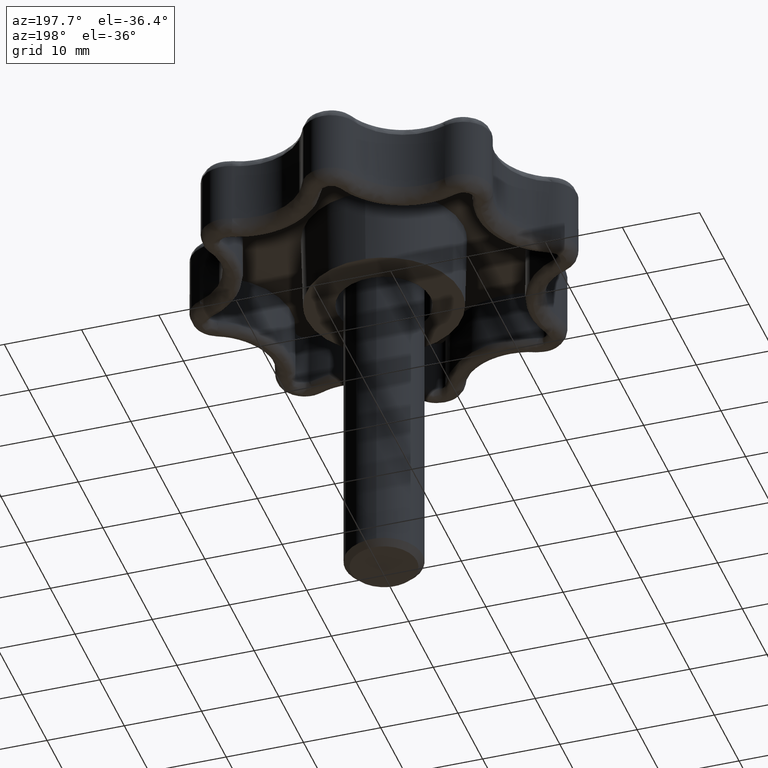
[diagram: clean part render]
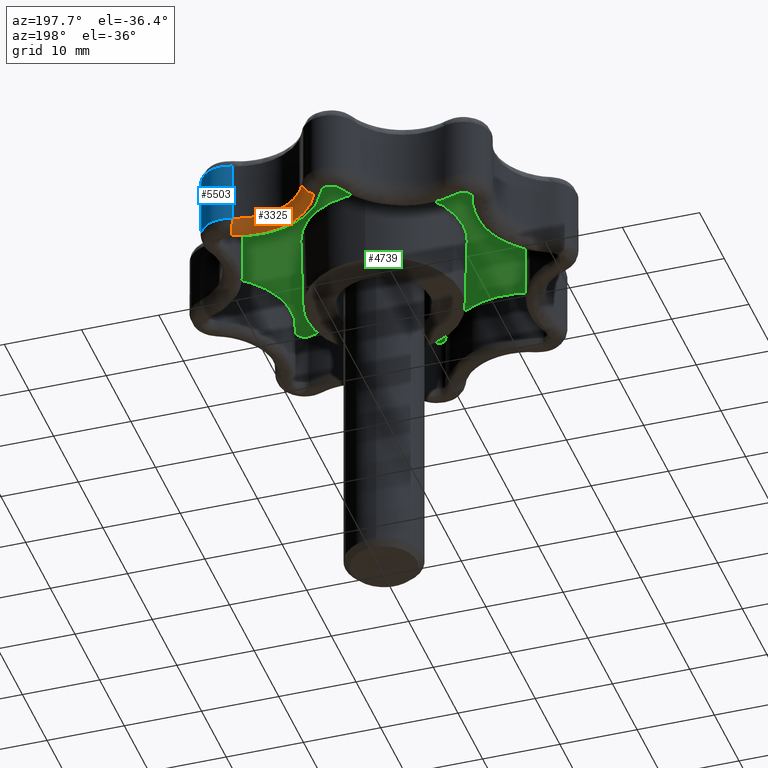
[diagram: same view with three faces highlighted in distinct colors, each labeled with its STEP entity id]
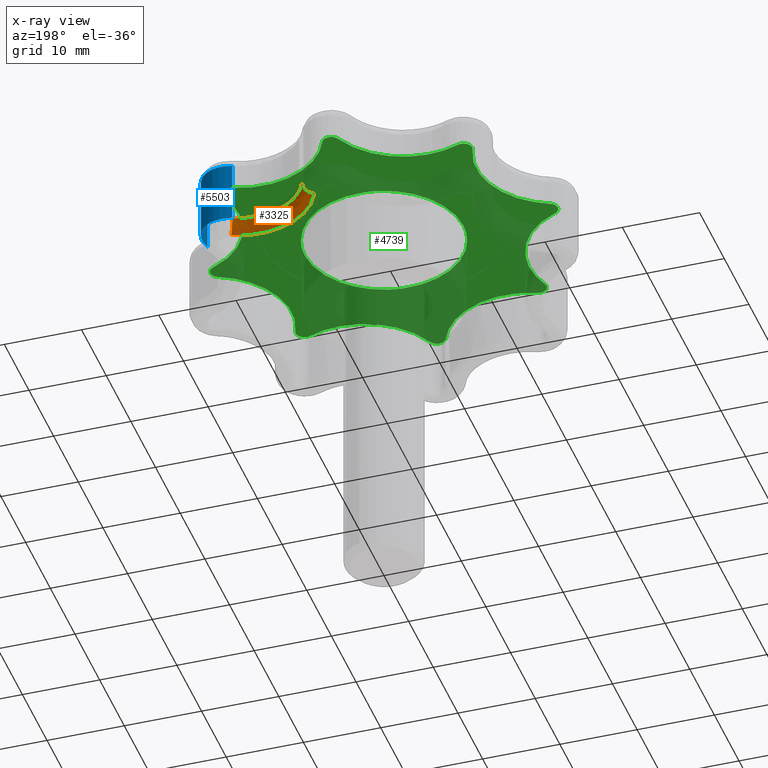
[diagram: x-ray of the same camera — body ghosted, the three highlighted faces saturated]
A machine part, auxiliary view with three faces highlighted in distinct colors.
The next image is the same camera in x-ray (body ghosted, the three faces saturated) — at least one of them is partly hidden behind the body in this view.
Their STEP definitions:

[orange] entity #3325 — the highlighted face is a freeform B-spline surface patch.
#1861=CARTESIAN_POINT('',(1.951608922942295,22.201121308526151,2.000000000000085));
#1862=VERTEX_POINT('',#1861);
#2005=CARTESIAN_POINT('',(14.318568614057961,17.078558844237900,2.000000000000085));
#2006=VERTEX_POINT('',#2005);
#2036=CARTESIAN_POINT('',(1.951608922942295,22.201121308526151,2.000000000000085));
#2037=CARTESIAN_POINT('',(5.592437728865609,13.501337493943963,2.000000000000086));
#2038=CARTESIAN_POINT('',(14.318568614057961,17.078558844237900,2.000000000000085));
#2046=(BOUNDED_CURVE()B_SPLINE_CURVE(2,(#2036,#2037,#2038),.UNSPECIFIED.,.F.,.U.)CURVE()GEOMETRIC_REPRESENTATION_ITEM()QUASI_UNIFORM_CURVE()RATIONAL_B_SPLINE_CURVE((1.0,0.709683079960347,1.0))REPRESENTATION_ITEM(''));
#2047=EDGE_CURVE('',#1862,#2006,#2046,.T.);
#3195=CARTESIAN_POINT('',(13.749606274232301,18.466464408698450,3.500000000000060));
#3196=VERTEX_POINT('',#3195);
#3197=CARTESIAN_POINT('',(14.318568614057961,17.078558844237900,2.000000000000085));
#3198=CARTESIAN_POINT('',(13.749606274232695,18.466464408698457,2.000000000000086));
#3199=CARTESIAN_POINT('',(13.749606274232301,18.466464408698450,3.500000000000060));
#3207=(BOUNDED_CURVE()B_SPLINE_CURVE(2,(#3197,#3198,#3199),.UNSPECIFIED.,.F.,.U.)CURVE()GEOMETRIC_REPRESENTATION_ITEM()QUASI_UNIFORM_CURVE()RATIONAL_B_SPLINE_CURVE((1.0,0.707106781186548,1.0))REPRESENTATION_ITEM(''));
#3208=EDGE_CURVE('',#2006,#3196,#3207,.T.);
#3253=CARTESIAN_POINT('',(3.335323767339140,22.780200948468551,3.500000000000060));
#3254=VERTEX_POINT('',#3253);
#3255=CARTESIAN_POINT('',(3.335323767339140,22.780200948468551,3.500000000000060));
#3256=CARTESIAN_POINT('',(3.335324496550105,22.780201253640673,2.878679424910463));
#3257=CARTESIAN_POINT('',(2.930043544039714,22.610592646053959,2.439339548738913));
#3258=CARTESIAN_POINT('',(2.524762591529322,22.440984038467239,1.999999672567362));
#3259=CARTESIAN_POINT('',(1.951608922942295,22.201121308526151,2.000000000000085));
#3267=(BOUNDED_CURVE()B_SPLINE_CURVE(2,(#3255,#3256,#3257,#3258,#3259),.UNSPECIFIED.,.F.,.U.)B_SPLINE_CURVE_WITH_KNOTS((3,2,3),(0.0,0.500000000000000,1.0),.UNSPECIFIED.)CURVE()GEOMETRIC_REPRESENTATION_ITEM()RATIONAL_B_SPLINE_CURVE((1.0,0.923879482093204,1.0,0.923879482093204,1.0))REPRESENTATION_ITEM(''));
#3268=EDGE_CURVE('',#3254,#1862,#3267,.T.);
#3290=CARTESIAN_POINT('',(3.135381404178026,23.298526054866997,3.604305850417957));
#3291=CARTESIAN_POINT('',(6.067484998010515,14.651146926686275,3.604305850417956));
#3292=CARTESIAN_POINT('',(14.256165925985032,18.690936764201030,3.604305850417957));
#3293=CARTESIAN_POINT('',(3.248966490634403,23.337039832887815,1.883692807323330));
#3294=CARTESIAN_POINT('',(6.137131564814874,14.819244474721629,1.883692807323330));
#3295=CARTESIAN_POINT('',(14.203102463500272,18.798496756353618,1.883692807323331));
#3296=CARTESIAN_POINT('',(1.619477856580882,22.784522196133896,2.003631039744648));
#3297=CARTESIAN_POINT('',(5.137983766902704,12.407721514433389,2.003631039744648));
#3298=CARTESIAN_POINT('',(14.964349487207453,17.255443965185840,2.003631039744648));
#3306=(BOUNDED_SURFACE()B_SPLINE_SURFACE(2,2,((#3290,#3293,#3296),(#3291,#3294,#3297),(#3292,#3295,#3298)),.UNSPECIFIED.,.F.,.F.,.U.)B_SPLINE_SURFACE_WITH_KNOTS((3,3),(3,3),(0.0,17.412350352354871),(0.0,2.733562621366230),.UNSPECIFIED.)GEOMETRIC_REPRESENTATION_ITEM()RATIONAL_B_SPLINE_SURFACE(((0.842594596161787,0.552931398578412,0.842594872059611),(0.556172132212819,0.364973898854347,0.556172314324930),(0.844926467047328,0.554461629885283,0.844926743708696)))REPRESENTATION_ITEM('')SURFACE());
#3307=ORIENTED_EDGE('',*,*,#3208,.F.);
#3308=ORIENTED_EDGE('',*,*,#2047,.F.);
#3309=ORIENTED_EDGE('',*,*,#3268,.F.);
#3310=CARTESIAN_POINT('',(13.749606274232310,18.466464408698439,3.500000000000060));
#3311=CARTESIAN_POINT('',(6.401285208611145,15.454066717053262,3.500000000000060));
#3312=CARTESIAN_POINT('',(3.335323767339140,22.780200948468551,3.500000000000060));
#3320=(BOUNDED_CURVE()B_SPLINE_CURVE(2,(#3310,#3311,#3312),.UNSPECIFIED.,.F.,.U.)CURVE()GEOMETRIC_REPRESENTATION_ITEM()QUASI_UNIFORM_CURVE()RATIONAL_B_SPLINE_CURVE((1.0,0.709683053948050,1.0))REPRESENTATION_ITEM(''));
#3321=EDGE_CURVE('',#3196,#3254,#3320,.T.);
#3322=ORIENTED_EDGE('',*,*,#3321,.F.);
#3323=EDGE_LOOP('',(#3307,#3308,#3309,#3322));
#3324=FACE_OUTER_BOUND('',#3323,.T.);
#3325=ADVANCED_FACE('',(#3324),#3306,.T.);

[blue] entity #5503 — the highlighted face is a freeform B-spline surface patch.
#3089=CARTESIAN_POINT('',(18.466464535258599,13.749604463034840,3.500000000000060));
#3090=VERTEX_POINT('',#3089);
#3195=CARTESIAN_POINT('',(13.749606274232301,18.466464408698450,3.500000000000060));
#3196=VERTEX_POINT('',#3195);
#3210=CARTESIAN_POINT('',(18.466464535258581,13.749604463034849,3.500000000000060));
#3211=CARTESIAN_POINT('',(19.379212245710033,15.976124414386348,3.500000000000060));
#3212=CARTESIAN_POINT('',(17.677669288615942,17.677668137557781,3.500000000000060));
#3213=CARTESIAN_POINT('',(15.976126331521849,19.379211860729228,3.500000000000060));
#3214=CARTESIAN_POINT('',(13.749606274232301,18.466464408698450,3.500000000000060));
#3222=(BOUNDED_CURVE()B_SPLINE_CURVE(2,(#3210,#3211,#3212,#3213,#3214),.UNSPECIFIED.,.F.,.U.)B_SPLINE_CURVE_WITH_KNOTS((3,2,3),(0.0,0.500000000000000,1.0),.UNSPECIFIED.)CURVE()GEOMETRIC_REPRESENTATION_ITEM()RATIONAL_B_SPLINE_CURVE((1.0,0.832482231252791,1.0,0.832482231252791,1.0))REPRESENTATION_ITEM(''));
#3223=EDGE_CURVE('',#3090,#3196,#3222,.T.);
#3885=CARTESIAN_POINT('',(18.466464535258599,13.749604463034840,11.500000000000000));
#3886=VERTEX_POINT('',#3885);
#4019=CARTESIAN_POINT('',(13.749606274232301,18.466464408698450,11.500000000000000));
#4020=VERTEX_POINT('',#4019);
#4052=CARTESIAN_POINT('',(13.749606274232301,18.466464408698450,11.500000000000000));
#4053=CARTESIAN_POINT('',(15.976126331521842,19.379211860729221,11.500000000000000));
#4054=CARTESIAN_POINT('',(17.677669288615942,17.677668137557781,11.500000000000000));
#4055=CARTESIAN_POINT('',(19.379212245710036,15.976124414386353,11.500000000000000));
#4056=CARTESIAN_POINT('',(18.466464535258581,13.749604463034849,11.500000000000000));
#4064=(BOUNDED_CURVE()B_SPLINE_CURVE(2,(#4052,#4053,#4054,#4055,#4056),.UNSPECIFIED.,.F.,.U.)B_SPLINE_CURVE_WITH_KNOTS((3,2,3),(0.0,0.500000000000000,1.0),.UNSPECIFIED.)CURVE()GEOMETRIC_REPRESENTATION_ITEM()RATIONAL_B_SPLINE_CURVE((1.0,0.832482231252790,1.0,0.832482231252790,1.0))REPRESENTATION_ITEM(''));
#4065=EDGE_CURVE('',#4020,#3886,#4064,.T.);
#5273=CARTESIAN_POINT('',(13.749606274232301,18.466464408698450,11.500000000000000));
#5274=CARTESIAN_POINT('',(13.749606274232301,18.466464408698450,3.500000000000060));
#5275=QUASI_UNIFORM_CURVE('',1,(#5273,#5274),.UNSPECIFIED.,.F.,.U.);
#5276=EDGE_CURVE('',#4020,#3196,#5275,.T.);
#5308=CARTESIAN_POINT('',(18.466464535258599,13.749604463034840,11.500000000000000));
#5309=CARTESIAN_POINT('',(18.466464535258599,13.749604463034840,3.500000000000060));
#5310=QUASI_UNIFORM_CURVE('',1,(#5308,#5309),.UNSPECIFIED.,.F.,.U.);
#5311=EDGE_CURVE('',#3886,#3090,#5310,.T.);
#5479=CARTESIAN_POINT('',(18.429418144665469,13.662501414613640,11.699999999999999));
#5480=CARTESIAN_POINT('',(18.429418144665469,13.662501414613640,3.295000000000060));
#5481=CARTESIAN_POINT('',(19.441242364292204,15.957604998431078,11.700000000000001));
#5482=CARTESIAN_POINT('',(19.441242364292204,15.957604998431078,3.295000000000060));
#5483=CARTESIAN_POINT('',(17.645830976136459,17.709114821171319,11.699999999999999));
#5484=CARTESIAN_POINT('',(17.645830976136459,17.709114821171319,3.295000000000060));
#5485=CARTESIAN_POINT('',(15.850419587980719,19.460624643911554,11.700000000000001));
#5486=CARTESIAN_POINT('',(15.850419587980719,19.460624643911554,3.295000000000060));
#5487=CARTESIAN_POINT('',(13.581062727295089,18.392304396638309,11.699999999999999));
#5488=CARTESIAN_POINT('',(13.581062727295089,18.392304396638309,3.295000000000060));
#5496=(BOUNDED_SURFACE()B_SPLINE_SURFACE(1,2,((#5479,#5481,#5483,#5485,#5487),(#5480,#5482,#5484,#5486,#5488)),.UNSPECIFIED.,.F.,.F.,.U.)B_SPLINE_SURFACE_WITH_KNOTS((2,2),(3,2,3),(0.0,8.404999999999941),(0.0,4.525336017328987,9.050672034657973),.UNSPECIFIED.)GEOMETRIC_REPRESENTATION_ITEM()RATIONAL_B_SPLINE_SURFACE(((1.0,0.821646937942164,1.0,0.821646937942164,1.0),(1.0,0.821646937942164,1.0,0.821646937942164,1.0)))REPRESENTATION_ITEM('')SURFACE());
#5497=ORIENTED_EDGE('',*,*,#5311,.T.);
#5498=ORIENTED_EDGE('',*,*,#3223,.T.);
#5499=ORIENTED_EDGE('',*,*,#5276,.F.);
#5500=ORIENTED_EDGE('',*,*,#4065,.T.);
#5501=EDGE_LOOP('',(#5497,#5498,#5499,#5500));
#5502=FACE_OUTER_BOUND('',#5501,.T.);
#5503=ADVANCED_FACE('',(#5502),#5496,.T.);

[green] entity #4739 — the highlighted face is a freeform B-spline surface patch.
#899=CARTESIAN_POINT('',(-0.805119864894755,10.230227369693029,9.999998833596717));
#900=VERTEX_POINT('',#899);
#906=CARTESIAN_POINT('',(10.261860000000000,0.0,10.0));
#907=VERTEX_POINT('',#906);
#908=CARTESIAN_POINT('',(-0.805119864894755,10.230227369693033,9.999998833596717));
#909=CARTESIAN_POINT('',(-0.403181342720238,10.261859970090750,9.999998854777854));
#910=CARTESIAN_POINT('',(2.306762E-009,10.261859970689180,9.999998877691439));
#911=CARTESIAN_POINT('',(10.261860001108065,10.261859985920388,9.999999460893081));
#912=CARTESIAN_POINT('',(10.261860000000000,0.0,10.0));
#920=(BOUNDED_CURVE()B_SPLINE_CURVE(2,(#908,#909,#910,#911,#912),.UNSPECIFIED.,.F.,.U.)B_SPLINE_CURVE_WITH_KNOTS((3,2,3),(0.736331575254384,0.750000000000000,1.0),.UNSPECIFIED.)CURVE()GEOMETRIC_REPRESENTATION_ITEM()RATIONAL_B_SPLINE_CURVE((0.969723929286888,0.983986444320589,1.0,0.707106781186548,1.0))REPRESENTATION_ITEM(''));
#921=EDGE_CURVE('',#900,#907,#920,.T.);
#923=CARTESIAN_POINT('',(0.805119864894754,-10.230227369693029,9.999998833596717));
#924=VERTEX_POINT('',#923);
#925=CARTESIAN_POINT('',(10.261860000000000,0.0,10.0));
#926=CARTESIAN_POINT('',(10.261859998801301,-9.485981038988044,9.999999416798358));
#927=CARTESIAN_POINT('',(0.805119864894754,-10.230227369693033,9.999998833596717));
#935=(BOUNDED_CURVE()B_SPLINE_CURVE(2,(#925,#926,#927),.UNSPECIFIED.,.F.,.U.)B_SPLINE_CURVE_WITH_KNOTS((3,3),(0.0,0.236331575254384),.UNSPECIFIED.)CURVE()GEOMETRIC_REPRESENTATION_ITEM()RATIONAL_B_SPLINE_CURVE((1.0,0.723120336865959,0.969723929286887))REPRESENTATION_ITEM(''));
#936=EDGE_CURVE('',#907,#924,#935,.T.);
#986=CARTESIAN_POINT('',(-10.261860000000000,0.0,10.0));
#987=VERTEX_POINT('',#986);
#988=CARTESIAN_POINT('',(0.805119864894754,-10.230227369693033,9.999998833596717));
#989=CARTESIAN_POINT('',(0.403181342720235,-10.261859970090750,9.999998854777852));
#990=CARTESIAN_POINT('',(-2.306765E-009,-10.261859970689180,9.999998877691439));
#991=CARTESIAN_POINT('',(-10.261860001108065,-10.261859985920388,9.999999460893081));
#992=CARTESIAN_POINT('',(-10.261860000000000,0.0,10.0));
#1000=(BOUNDED_CURVE()B_SPLINE_CURVE(2,(#988,#989,#990,#991,#992),.UNSPECIFIED.,.F.,.U.)B_SPLINE_CURVE_WITH_KNOTS((3,2,3),(0.236331575254384,0.250000000000000,0.500000000000000),.UNSPECIFIED.)CURVE()GEOMETRIC_REPRESENTATION_ITEM()RATIONAL_B_SPLINE_CURVE((0.969723929286887,0.983986444320589,1.0,0.707106781186548,1.0))REPRESENTATION_ITEM(''));
#1001=EDGE_CURVE('',#924,#987,#1000,.T.);
#1003=CARTESIAN_POINT('',(-10.261860000000000,0.0,10.0));
#1004=CARTESIAN_POINT('',(-10.261859998801302,9.485981038988046,9.999999416798358));
#1005=CARTESIAN_POINT('',(-0.805119864894755,10.230227369693033,9.999998833596717));
#1013=(BOUNDED_CURVE()B_SPLINE_CURVE(2,(#1003,#1004,#1005),.UNSPECIFIED.,.F.,.U.)B_SPLINE_CURVE_WITH_KNOTS((3,3),(0.500000000000000,0.736331575254384),.UNSPECIFIED.)CURVE()GEOMETRIC_REPRESENTATION_ITEM()RATIONAL_B_SPLINE_CURVE((1.0,0.723120336865959,0.969723929286888))REPRESENTATION_ITEM(''));
#1014=EDGE_CURVE('',#987,#900,#1013,.T.);
#4470=CARTESIAN_POINT('',(-24.747748346070619,-24.747753696765251,10.0));
#4471=CARTESIAN_POINT('',(24.747754187962158,-24.747753696765251,10.0));
#4472=CARTESIAN_POINT('',(-24.747748346070619,24.747746880445671,10.0));
#4473=CARTESIAN_POINT('',(24.747754187962158,24.747746880445671,10.0));
#4474=B_SPLINE_SURFACE_WITH_KNOTS('',1,1,((#4470,#4472),(#4471,#4473)),.UNSPECIFIED.,.F.,.F.,.U.,(2,2),(2,2),(0.0,49.495502534032781),(0.0,49.495500577210919),.UNSPECIFIED.);
#4475=CARTESIAN_POINT('',(-14.697877583300659,-16.153291772392802,10.000000000000121));
#4476=VERTEX_POINT('',#4475);
#4477=CARTESIAN_POINT('',(-16.153290841904798,-14.697874752865260,10.000000000000121));
#4478=VERTEX_POINT('',#4477);
#4479=CARTESIAN_POINT('',(-14.697877583300659,-16.153291772392802,10.000000000000121));
#4480=CARTESIAN_POINT('',(-15.384883012253439,-16.434922999217182,10.000000000000121));
#4481=CARTESIAN_POINT('',(-15.909903447450100,-15.909901207318830,10.000000000000121));
#4482=CARTESIAN_POINT('',(-16.434923882646750,-15.384879415420478,10.000000000000121));
#4483=CARTESIAN_POINT('',(-16.153290841904798,-14.697874752865260,10.000000000000121));
#4491=(BOUNDED_CURVE()B_SPLINE_CURVE(2,(#4479,#4480,#4481,#4482,#4483),.UNSPECIFIED.,.F.,.U.)B_SPLINE_CURVE_WITH_KNOTS((3,2,3),(0.0,0.500000000000000,1.0),.UNSPECIFIED.)CURVE()GEOMETRIC_REPRESENTATION_ITEM()RATIONAL_B_SPLINE_CURVE((1.0,0.832482406516660,1.0,0.832482406516660,1.0))REPRESENTATION_ITEM(''));
#4492=EDGE_CURVE('',#4476,#4478,#4491,.T.);
#4493=ORIENTED_EDGE('',*,*,#4492,.T.);
#4494=CARTESIAN_POINT('',(-21.815070546161600,-1.029130078442284,10.000000000000121));
#4495=VERTEX_POINT('',#4494);
#4496=CARTESIAN_POINT('',(-21.815070546161600,-1.029130078442280,10.000000000000121));
#4497=CARTESIAN_POINT('',(-12.199519098445281,-5.053203427917947,10.000000000000121));
#4498=CARTESIAN_POINT('',(-16.153290841904759,-14.697874752865269,10.000000000000121));
#4506=(BOUNDED_CURVE()B_SPLINE_CURVE(2,(#4496,#4497,#4498),.UNSPECIFIED.,.F.,.U.)CURVE()GEOMETRIC_REPRESENTATION_ITEM()QUASI_UNIFORM_CURVE()RATIONAL_B_SPLINE_CURVE((1.0,0.709683059159383,1.0))REPRESENTATION_ITEM(''));
#4507=EDGE_CURVE('',#4495,#4478,#4506,.T.);
#4508=ORIENTED_EDGE('',*,*,#4507,.F.);
#4509=CARTESIAN_POINT('',(-21.815067965572549,1.029132464492292,10.000000000000121));
#4510=VERTEX_POINT('',#4509);
#4511=CARTESIAN_POINT('',(-21.815070546161600,-1.029130078442284,10.000000000000121));
#4512=CARTESIAN_POINT('',(-22.499999698345700,-0.742487670813277,10.000000000000121));
#4513=CARTESIAN_POINT('',(-22.499998767433720,0.000002206550616,10.000000000000121));
#4514=CARTESIAN_POINT('',(-22.499997836521761,0.742492083914509,10.000000000000121));
#4515=CARTESIAN_POINT('',(-21.815067965572549,1.029132464492292,10.000000000000121));
#4523=(BOUNDED_CURVE()B_SPLINE_CURVE(2,(#4511,#4512,#4513,#4514,#4515),.UNSPECIFIED.,.F.,.U.)B_SPLINE_CURVE_WITH_KNOTS((3,2,3),(0.0,0.500000000000000,1.0),.UNSPECIFIED.)CURVE()GEOMETRIC_REPRESENTATION_ITEM()RATIONAL_B_SPLINE_CURVE((1.0,0.832482515965025,1.0,0.832482515965025,1.0))REPRESENTATION_ITEM(''));
#4524=EDGE_CURVE('',#4495,#4510,#4523,.T.);
#4525=ORIENTED_EDGE('',*,*,#4524,.T.);
#4526=CARTESIAN_POINT('',(-16.153290841904749,14.697877752865280,10.000000000000121));
#4527=VERTEX_POINT('',#4526);
#4528=CARTESIAN_POINT('',(-16.153290841904749,14.697877752865280,10.000000000000121));
#4529=CARTESIAN_POINT('',(-12.199519603983482,5.053207676144584,10.000000000000121));
#4530=CARTESIAN_POINT('',(-21.815067965572549,1.029132464492292,10.000000000000121));
#4538=(BOUNDED_CURVE()B_SPLINE_CURVE(2,(#4528,#4529,#4530),.UNSPECIFIED.,.F.,.U.)CURVE()GEOMETRIC_REPRESENTATION_ITEM()QUASI_UNIFORM_CURVE()RATIONAL_B_SPLINE_CURVE((1.0,0.709683131071366,1.0))REPRESENTATION_ITEM(''));
#4539=EDGE_CURVE('',#4527,#4510,#4538,.T.);
#4540=ORIENTED_EDGE('',*,*,#4539,.F.);
#4541=CARTESIAN_POINT('',(-14.697875998795340,16.153288991883951,10.000000000000121));
#4542=VERTEX_POINT('',#4541);
#4543=CARTESIAN_POINT('',(-16.153290841904749,14.697877752865280,10.000000000000121));
#4544=CARTESIAN_POINT('',(-16.434922389172122,15.384882716853184,10.000000000000121));
#4545=CARTESIAN_POINT('',(-15.909901422328220,15.909902383570730,10.000000000000121));
#4546=CARTESIAN_POINT('',(-15.384880455484327,16.434922050288268,10.000000000000121));
#4547=CARTESIAN_POINT('',(-14.697875998795340,16.153288991883951,10.000000000000121));
#4555=(BOUNDED_CURVE()B_SPLINE_CURVE(2,(#4543,#4544,#4545,#4546,#4547),.UNSPECIFIED.,.F.,.U.)B_SPLINE_CURVE_WITH_KNOTS((3,2,3),(0.0,0.500000000000000,1.0),.UNSPECIFIED.)CURVE()GEOMETRIC_REPRESENTATION_ITEM()RATIONAL_B_SPLINE_CURVE((1.0,0.832482438182524,1.0,0.832482438182524,1.0))REPRESENTATION_ITEM(''));
#4556=EDGE_CURVE('',#4527,#4542,#4555,.T.);
#4557=ORIENTED_EDGE('',*,*,#4556,.T.);
#4558=CARTESIAN_POINT('',(-1.029133149190226,21.815068377108950,10.000000000000121));
#4559=VERTEX_POINT('',#4558);
#4560=CARTESIAN_POINT('',(-1.029133149190221,21.815068377108950,10.000000000000121));
#4561=CARTESIAN_POINT('',(-5.053205996037483,12.199518601674253,10.000000000000121));
#4562=CARTESIAN_POINT('',(-14.697875998795340,16.153288991883951,10.000000000000121));
#4570=(BOUNDED_CURVE()B_SPLINE_CURVE(2,(#4560,#4561,#4562),.UNSPECIFIED.,.F.,.U.)CURVE()GEOMETRIC_REPRESENTATION_ITEM()QUASI_UNIFORM_CURVE()RATIONAL_B_SPLINE_CURVE((1.0,0.709683117847997,1.0))REPRESENTATION_ITEM(''));
#4571=EDGE_CURVE('',#4559,#4542,#4570,.T.);
#4572=ORIENTED_EDGE('',*,*,#4571,.F.);
#4573=CARTESIAN_POINT('',(1.029132374289194,21.815068181113549,10.000000000000121));
#4574=VERTEX_POINT('',#4573);
#4575=CARTESIAN_POINT('',(-1.029133149190226,21.815068377108950,10.000000000000121));
#4576=CARTESIAN_POINT('',(-0.742491402624854,22.499998960615983,10.000000000000121));
#4577=CARTESIAN_POINT('',(-0.000000059175853,22.499998999999999,10.000000000000121));
#4578=CARTESIAN_POINT('',(0.742491284273148,22.499999039384015,10.000000000000121));
#4579=CARTESIAN_POINT('',(1.029132374289189,21.815068181113549,10.000000000000121));
#4587=(BOUNDED_CURVE()B_SPLINE_CURVE(2,(#4575,#4576,#4577,#4578,#4579),.UNSPECIFIED.,.F.,.U.)B_SPLINE_CURVE_WITH_KNOTS((3,2,3),(0.0,0.500000000000000,1.0),.UNSPECIFIED.)CURVE()GEOMETRIC_REPRESENTATION_ITEM()RATIONAL_B_SPLINE_CURVE((1.0,0.832482149361484,1.0,0.832482149361484,1.0))REPRESENTATION_ITEM(''));
#4588=EDGE_CURVE('',#4559,#4574,#4587,.T.);
#4589=ORIENTED_EDGE('',*,*,#4588,.T.);
#4590=CARTESIAN_POINT('',(14.697877922429900,16.153288911416698,10.000000000000121));
#4591=VERTEX_POINT('',#4590);
#4592=CARTESIAN_POINT('',(14.697877922429900,16.153288911416698,10.000000000000121));
#4593=CARTESIAN_POINT('',(5.053206557775154,12.199516955059437,10.000000000000123));
#4594=CARTESIAN_POINT('',(1.029132374289194,21.815068181113549,10.000000000000121));
#4602=(BOUNDED_CURVE()B_SPLINE_CURVE(2,(#4592,#4593,#4594),.UNSPECIFIED.,.F.,.U.)CURVE()GEOMETRIC_REPRESENTATION_ITEM()QUASI_UNIFORM_CURVE()RATIONAL_B_SPLINE_CURVE((1.0,0.709683055188843,1.0))REPRESENTATION_ITEM(''));
#4603=EDGE_CURVE('',#4591,#4574,#4602,.T.);
#4604=ORIENTED_EDGE('',*,*,#4603,.F.);
#4605=CARTESIAN_POINT('',(16.153289021426399,14.697876070859920,10.000000000000121));
#4606=VERTEX_POINT('',#4605);
#4607=CARTESIAN_POINT('',(14.697877922429900,16.153288911416698,10.000000000000121));
#4608=CARTESIAN_POINT('',(15.384882546938403,16.434921759913752,10.000000000000119));
#4609=CARTESIAN_POINT('',(15.909902351076379,15.909901169164289,10.000000000000121));
#4610=CARTESIAN_POINT('',(16.434922155214363,15.384880578414831,10.000000000000119));
#4611=CARTESIAN_POINT('',(16.153289021426389,14.697876070859930,10.000000000000121));
#4619=(BOUNDED_CURVE()B_SPLINE_CURVE(2,(#4607,#4608,#4609,#4610,#4611),.UNSPECIFIED.,.F.,.U.)B_SPLINE_CURVE_WITH_KNOTS((3,2,3),(0.0,0.500000000000000,1.0),.UNSPECIFIED.)CURVE()GEOMETRIC_REPRESENTATION_ITEM()RATIONAL_B_SPLINE_CURVE((1.0,0.832482376417776,1.0,0.832482376417776,1.0))REPRESENTATION_ITEM(''));
#4620=EDGE_CURVE('',#4591,#4606,#4619,.T.);
#4621=ORIENTED_EDGE('',*,*,#4620,.T.);
#4622=CARTESIAN_POINT('',(21.815071715214248,1.029133007694378,10.000000000000121));
#4623=VERTEX_POINT('',#4622);
#4624=CARTESIAN_POINT('',(21.815071715214248,1.029133007694378,10.000000000000121));
#4625=CARTESIAN_POINT('',(12.199521522253114,5.053205627042294,10.000000000000121));
#4626=CARTESIAN_POINT('',(16.153289021426399,14.697876070859920,10.000000000000121));
#4634=(BOUNDED_CURVE()B_SPLINE_CURVE(2,(#4624,#4625,#4626),.UNSPECIFIED.,.F.,.U.)CURVE()GEOMETRIC_REPRESENTATION_ITEM()QUASI_UNIFORM_CURVE()RATIONAL_B_SPLINE_CURVE((1.0,0.709683141114679,1.0))REPRESENTATION_ITEM(''));
#4635=EDGE_CURVE('',#4623,#4606,#4634,.T.);
#4636=ORIENTED_EDGE('',*,*,#4635,.F.);
#4637=CARTESIAN_POINT('',(21.815072163151800,-1.029132381806120,10.000000000000121));
#4638=VERTEX_POINT('',#4637);
#4639=CARTESIAN_POINT('',(21.815071715214248,1.029133007694378,10.000000000000121));
#4640=CARTESIAN_POINT('',(22.500002782088863,0.742491878445955,10.000000000000121));
#4641=CARTESIAN_POINT('',(22.500002999999950,0.000000327418875,10.000000000000121));
#4642=CARTESIAN_POINT('',(22.500003217911036,-0.742491223608205,10.000000000000121));
#4643=CARTESIAN_POINT('',(21.815072163151800,-1.029132381806116,10.000000000000121));
#4651=(BOUNDED_CURVE()B_SPLINE_CURVE(2,(#4639,#4640,#4641,#4642,#4643),.UNSPECIFIED.,.F.,.U.)B_SPLINE_CURVE_WITH_KNOTS((3,2,3),(0.0,0.500000000000000,1.0),.UNSPECIFIED.)CURVE()GEOMETRIC_REPRESENTATION_ITEM()RATIONAL_B_SPLINE_CURVE((1.0,0.832482077917455,1.0,0.832482077917455,1.0))REPRESENTATION_ITEM(''));
#4652=EDGE_CURVE('',#4623,#4638,#4651,.T.);
#4653=ORIENTED_EDGE('',*,*,#4652,.T.);
#4654=CARTESIAN_POINT('',(16.153291772392802,-14.697874583300640,10.000000000000121));
#4655=VERTEX_POINT('',#4654);
#4656=CARTESIAN_POINT('',(16.153291772392802,-14.697874583300640,10.000000000000121));
#4657=CARTESIAN_POINT('',(12.199520842915021,-5.053204741581677,10.000000000000121));
#4658=CARTESIAN_POINT('',(21.815072163151800,-1.029132381806120,10.000000000000121));
#4666=(BOUNDED_CURVE()B_SPLINE_CURVE(2,(#4656,#4657,#4658),.UNSPECIFIED.,.F.,.U.)CURVE()GEOMETRIC_REPRESENTATION_ITEM()QUASI_UNIFORM_CURVE()RATIONAL_B_SPLINE_CURVE((1.0,0.709683076045122,1.0))REPRESENTATION_ITEM(''));
#4667=EDGE_CURVE('',#4655,#4638,#4666,.T.);
#4668=ORIENTED_EDGE('',*,*,#4667,.F.);
#4669=CARTESIAN_POINT('',(14.697876088876059,-16.153289028812001,10.000000000000121));
#4670=VERTEX_POINT('',#4669);
#4671=CARTESIAN_POINT('',(16.153291772392802,-14.697874583300640,10.000000000000121));
#4672=CARTESIAN_POINT('',(16.434924982103635,-15.384879833600275,10.000000000000121));
#4673=CARTESIAN_POINT('',(15.909903323336961,-15.909901045773140,10.000000000000121));
#4674=CARTESIAN_POINT('',(15.384881664570282,-16.434922257946010,10.000000000000121));
#4675=CARTESIAN_POINT('',(14.697876088876059,-16.153289028812001,10.000000000000121));
#4683=(BOUNDED_CURVE()B_SPLINE_CURVE(2,(#4671,#4672,#4673,#4674,#4675),.UNSPECIFIED.,.F.,.U.)B_SPLINE_CURVE_WITH_KNOTS((3,2,3),(0.0,0.500000000000000,1.0),.UNSPECIFIED.)CURVE()GEOMETRIC_REPRESENTATION_ITEM()RATIONAL_B_SPLINE_CURVE((1.0,0.832482129972647,1.0,0.832482129972647,1.0))REPRESENTATION_ITEM(''));
#4684=EDGE_CURVE('',#4655,#4670,#4683,.T.);
#4685=ORIENTED_EDGE('',*,*,#4684,.T.);
#4686=CARTESIAN_POINT('',(1.029132936946456,-21.815071884266899,10.000000000000121));
#4687=VERTEX_POINT('',#4686);
#4688=CARTESIAN_POINT('',(1.029132936946456,-21.815071884266899,10.000000000000121));
#4689=CARTESIAN_POINT('',(5.053205466169016,-12.199521435413446,10.000000000000121));
#4690=CARTESIAN_POINT('',(14.697876088876059,-16.153289028812001,10.000000000000121));
#4698=(BOUNDED_CURVE()B_SPLINE_CURVE(2,(#4688,#4689,#4690),.UNSPECIFIED.,.F.,.U.)CURVE()GEOMETRIC_REPRESENTATION_ITEM()QUASI_UNIFORM_CURVE()RATIONAL_B_SPLINE_CURVE((1.0,0.709683134313342,1.0))REPRESENTATION_ITEM(''));
#4699=EDGE_CURVE('',#4687,#4670,#4698,.T.);
#4700=ORIENTED_EDGE('',*,*,#4699,.F.);
#4701=CARTESIAN_POINT('',(-1.029132396839972,-21.815072127228301,10.000000000000121));
#4702=VERTEX_POINT('',#4701);
#4703=CARTESIAN_POINT('',(1.029132936946456,-21.815071884266899,10.000000000000121));
#4704=CARTESIAN_POINT('',(0.742491715284561,-22.500002856031287,10.000000000000121));
#4705=CARTESIAN_POINT('',(0.000000216317903,-22.500002999999982,10.000000000000121));
#4706=CARTESIAN_POINT('',(-0.742491282648755,-22.500003143968666,10.000000000000121));
#4707=CARTESIAN_POINT('',(-1.029132396839970,-21.815072127228301,10.000000000000121));
#4715=(BOUNDED_CURVE()B_SPLINE_CURVE(2,(#4703,#4704,#4705,#4706,#4707),.UNSPECIFIED.,.F.,.U.)B_SPLINE_CURVE_WITH_KNOTS((3,2,3),(0.0,0.500000000000000,1.0),.UNSPECIFIED.)CURVE()GEOMETRIC_REPRESENTATION_ITEM()RATIONAL_B_SPLINE_CURVE((1.0,0.832482095835566,1.0,0.832482095835566,1.0))REPRESENTATION_ITEM(''));
#4716=EDGE_CURVE('',#4687,#4702,#4715,.T.);
#4717=ORIENTED_EDGE('',*,*,#4716,.T.);
#4718=CARTESIAN_POINT('',(-14.697877583300659,-16.153291772392819,10.000000000000121));
#4719=CARTESIAN_POINT('',(-5.053205623607190,-12.199519965343185,10.000000000000121));
#4720=CARTESIAN_POINT('',(-1.029132396839972,-21.815072127228301,10.000000000000121));
#4728=(BOUNDED_CURVE()B_SPLINE_CURVE(2,(#4718,#4719,#4720),.UNSPECIFIED.,.F.,.U.)CURVE()GEOMETRIC_REPRESENTATION_ITEM()QUASI_UNIFORM_CURVE()RATIONAL_B_SPLINE_CURVE((1.0,0.709683038496937,1.0))REPRESENTATION_ITEM(''));
#4729=EDGE_CURVE('',#4476,#4702,#4728,.T.);
#4730=ORIENTED_EDGE('',*,*,#4729,.F.);
#4731=EDGE_LOOP('',(#4493,#4508,#4525,#4540,#4557,#4572,#4589,#4604,#4621,#4636,#4653,#4668,#4685,#4700,#4717,#4730));
#4732=FACE_OUTER_BOUND('',#4731,.T.);
#4733=ORIENTED_EDGE('',*,*,#1014,.F.);
#4734=ORIENTED_EDGE('',*,*,#1001,.F.);
#4735=ORIENTED_EDGE('',*,*,#936,.F.);
#4736=ORIENTED_EDGE('',*,*,#921,.F.);
#4737=EDGE_LOOP('',(#4733,#4734,#4735,#4736));
#4738=FACE_BOUND('',#4737,.T.);
#4739=ADVANCED_FACE('',(#4732,#4738),#4474,.F.);